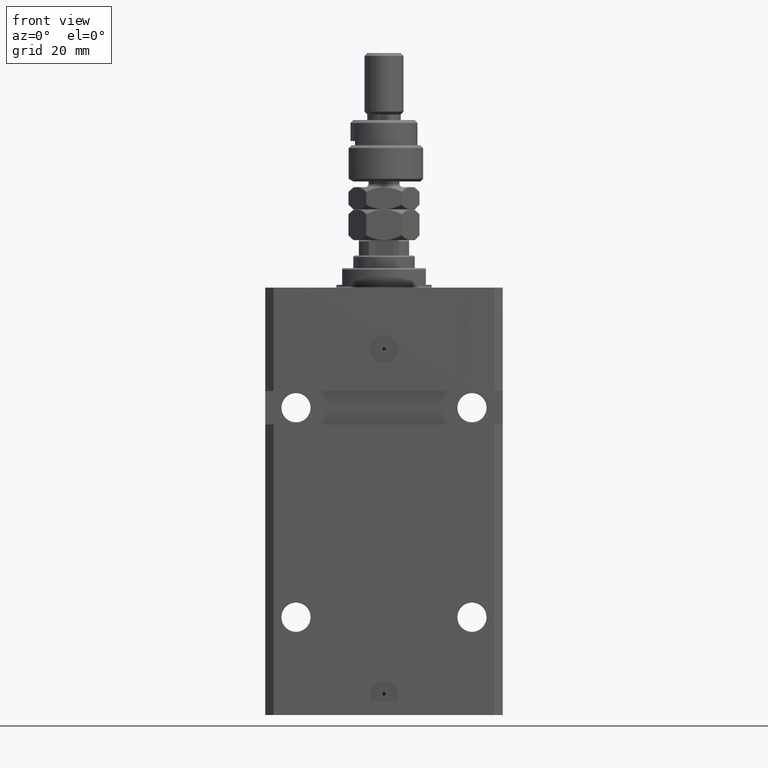
[diagram: clean part render]
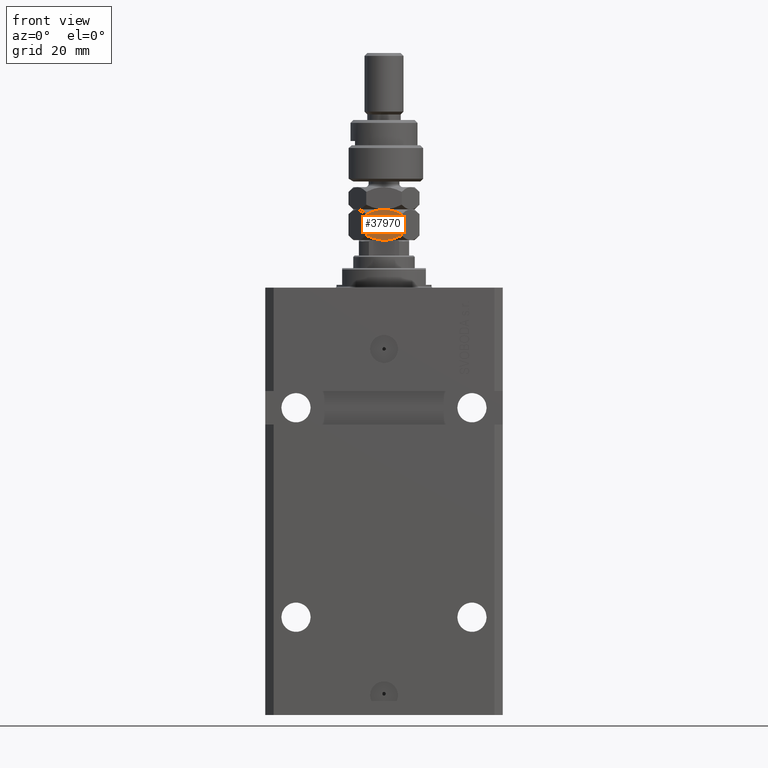
[diagram: same view with one face highlighted and labeled with its STEP entity id]
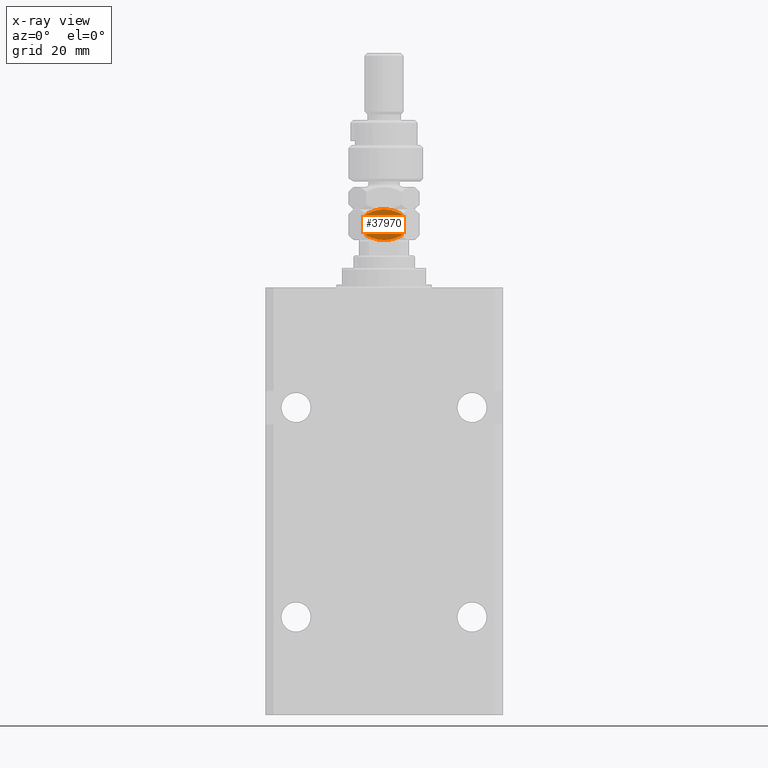
[diagram: x-ray of the same camera — body ghosted, the highlighted face saturated]
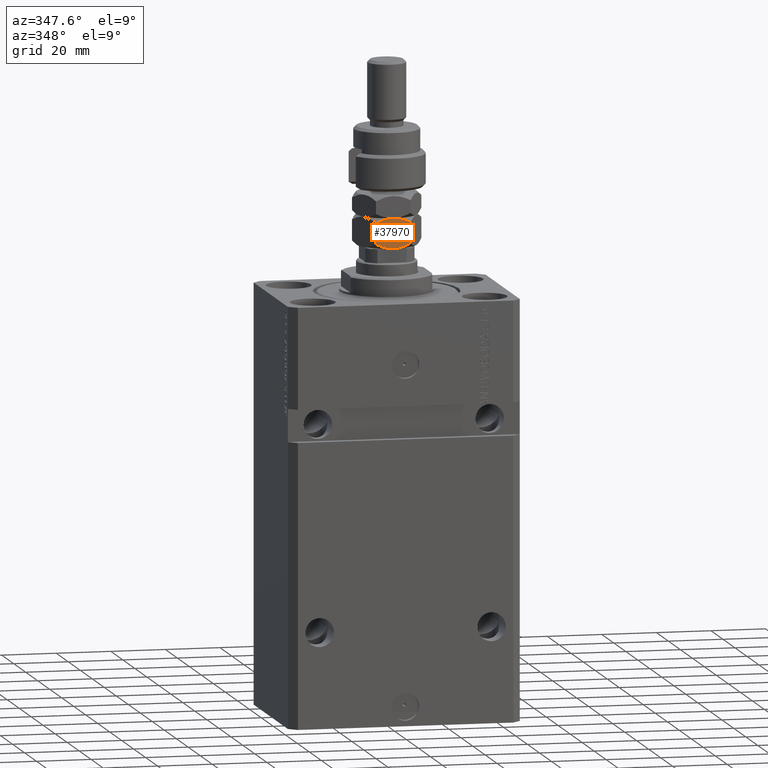
[diagram: same view with one face highlighted and labeled with its STEP entity id]
A machine part, front view. The second image highlights one B-rep face of the part: STEP entity #37970.
The next image is the same camera in x-ray: the body ghosted, the highlighted face saturated — about 0% of this face is hidden behind the body in this view.
A second angle (auxiliary view) of the same face is appended — the face is thin or edge-on in the first view.
In plain terms, the highlighted planar face has unit normal (-0, 1, 0).
Its self-contained STEP definition (entity closure, byte-faithful):
#1102 = VERTEX_POINT ( 'NONE', #20437 ) ;
#1562 = CARTESIAN_POINT ( 'NONE',  ( 4.529374112020102316, -10.08667055933643475, 10.95634070256488179 ) ) ;
#2442 = B_SPLINE_CURVE_WITH_KNOTS ( 'NONE', 3,
 ( #14763, #34098, #13759, #42058, #17888, #18388 ),
 .UNSPECIFIED., .F., .F.,
 ( 4, 2, 4 ),
 ( 0.006583488920348296025, 0.009852050593448711396, 0.01312061226654912677 ),
 .UNSPECIFIED. ) ;
#3402 = LINE ( 'NONE', #34843, #47838 ) ;
#3995 = CARTESIAN_POINT ( 'NONE',  ( 1.748214531935804672, -11.69237379155741330, 0.7776848045220248196 ) ) ;
#4299 = EDGE_CURVE ( 'NONE', #19673, #43240, #48394, .T. ) ;
#5434 = CARTESIAN_POINT ( 'NONE',  ( 1.744478007639205241, -11.69453107486588728, 10.21937661245323170 ) ) ;
#5651 = CARTESIAN_POINT ( 'NONE',  ( 5.499999999999994671, -9.526279441628823008, 11.00000000000000000 ) ) ;
#7852 = CARTESIAN_POINT ( 'NONE',  ( 11.00000000000000000, -6.350852961085885262, 9.298294077828238358 ) ) ;
#9426 = EDGE_CURVE ( 'NONE', #42990, #39379, #33290, .T. ) ;
#9623 = CARTESIAN_POINT ( 'NONE',  ( 7.420105971005177992, -8.417705742396378810, 0.2081220748670716547 ) ) ;
#11053 = FACE_OUTER_BOUND ( 'NONE', #12209, .T. ) ;
#11556 = DIRECTION ( 'NONE',  ( -0.4999999999999996669, 0.8660254037844388186, 0.000000000000000000 ) ) ;
#12059 = EDGE_CURVE ( 'NONE', #26267, #42990, #2442, .T. ) ;
#12209 = EDGE_LOOP ( 'NONE', ( #29769, #27871, #33369, #42144, #12332, #12269 ) ) ;
#12243 = CARTESIAN_POINT ( 'NONE',  ( 5.499999999999996447, -9.526279441628828337, 0.000000000000000000 ) ) ;
#12269 = ORIENTED_EDGE ( 'NONE', *, *, #4299, .F. ) ;
#12332 = ORIENTED_EDGE ( 'NONE', *, *, #47873, .T. ) ;
#12976 = CARTESIAN_POINT ( 'NONE',  ( 10.13752086928278118, -6.848805519375901874, 1.203753363881747029 ) ) ;
#13485 = CARTESIAN_POINT ( 'NONE',  ( 11.00000000000000000, -6.350852961085885262, 1.701705922171761864 ) ) ;
#13737 = CARTESIAN_POINT ( 'NONE',  ( 5.499999999999996447, -9.526279441628828337, 0.000000000000000000 ) ) ;
#13759 = CARTESIAN_POINT ( 'NONE',  ( 7.397073880711846350, -8.431003325927232339, 10.83109139163524404 ) ) ;
#13982 = CARTESIAN_POINT ( 'NONE',  ( 5.981709287746637571, -9.248164454677159085, -1.733029410082298494E-15 ) ) ;
#14763 = CARTESIAN_POINT ( 'NONE',  ( 5.499999999999994671, -9.526279441628823008, 11.00000000000000000 ) ) ;
#15259 = CARTESIAN_POINT ( 'NONE',  ( -2.056508384864602535E-15, -12.70170592217176342, 1.701705922171757868 ) ) ;
#16792 = VECTOR ( 'NONE', #25277, 1000.000000000000000 ) ;
#17072 = B_SPLINE_CURVE_WITH_KNOTS ( 'NONE', 3,
 ( #13485, #12976, #21458, #28689, #9623, #37169, #13982, #13737 ),
 .UNSPECIFIED., .F., .F.,
 ( 4, 2, 2, 4 ),
 ( 2.544311317612473652E-07, 0.003291871675740032539, 0.004937680298044168185, 0.006583488920348303831 ),
 .UNSPECIFIED. ) ;
#17888 = CARTESIAN_POINT ( 'NONE',  ( 10.13851939750335696, -6.848229018838962290, 9.795670135581396210 ) ) ;
#18387 = AXIS2_PLACEMENT_3D ( 'NONE', #38081, #11556, #38844 ) ;
#18388 = CARTESIAN_POINT ( 'NONE',  ( 11.00000000000000000, -6.350852961085885262, 9.298294077828238358 ) ) ;
#19673 = VERTEX_POINT ( 'NONE', #12243 ) ;
#20437 = CARTESIAN_POINT ( 'NONE',  ( -1.735608132212364507E-15, -12.70170592217176342, 9.298294077828241910 ) ) ;
#21458 = CARTESIAN_POINT ( 'NONE',  ( 9.255521992360788985, -7.358027808391763180, 0.7806233875467720740 ) ) ;
#21996 = B_SPLINE_CURVE_WITH_KNOTS ( 'NONE', 3,
 ( #44849, #37362, #5434, #28628, #45344, #1562, #36339, #44333 ),
 .UNSPECIFIED., .F., .F.,
 ( 4, 2, 2, 4 ),
 ( 2.544311317609507449E-07, 0.003291871675740027335, 0.004937680298044161246, 0.006583488920348296025 ),
 .UNSPECIFIED. ) ;
#22037 = EDGE_CURVE ( 'NONE', #39379, #19673, #17072, .T. ) ;
#22240 = EDGE_CURVE ( 'NONE', #1102, #26267, #21996, .T. ) ;
#22374 = PLANE ( 'NONE',  #18387 ) ;
#23305 = CARTESIAN_POINT ( 'NONE',  ( 11.00000000000000000, -6.350852961085885262, 1.701705922171761864 ) ) ;
#24087 = CARTESIAN_POINT ( 'NONE',  ( -2.056508384864602535E-15, -12.70170592217176342, 1.701705922171757868 ) ) ;
#25277 = DIRECTION ( 'NONE',  ( -0.000000000000000000, -0.000000000000000000, -1.000000000000000000 ) ) ;
#26267 = VERTEX_POINT ( 'NONE', #5651 ) ;
#27871 = ORIENTED_EDGE ( 'NONE', *, *, #9426, .F. ) ;
#28628 = CARTESIAN_POINT ( 'NONE',  ( 3.115032419653385176, -10.90324111615047364, 10.67178078790959717 ) ) ;
#28689 = CARTESIAN_POINT ( 'NONE',  ( 7.884967580346608607, -8.149317767107183030, 0.3282192120904023902 ) ) ;
#29769 = ORIENTED_EDGE ( 'NONE', *, *, #22037, .F. ) ;
#31579 = CARTESIAN_POINT ( 'NONE',  ( 5.499999999999996447, -9.526279441628828337, 0.000000000000000000 ) ) ;
#33290 = LINE ( 'NONE', #33536, #16792 ) ;
#33369 = ORIENTED_EDGE ( 'NONE', *, *, #12059, .F. ) ;
#33536 = CARTESIAN_POINT ( 'NONE',  ( 11.00000000000000000, -6.350852961085885262, 11.00000000000000000 ) ) ;
#34098 = CARTESIAN_POINT ( 'NONE',  ( 6.456670474420572070, -8.973945485696336988, 11.00000000000000711 ) ) ;
#34843 = CARTESIAN_POINT ( 'NONE',  ( -2.168404344971008868E-15, -12.70170592217176342, 11.00000000000000000 ) ) ;
#36339 = CARTESIAN_POINT ( 'NONE',  ( 5.018290712253354435, -9.804394428580495813, 11.00000000000000178 ) ) ;
#37169 = CARTESIAN_POINT ( 'NONE',  ( 6.470625887979890578, -8.965888323921214820, 0.04365929743512345085 ) ) ;
#37362 = CARTESIAN_POINT ( 'NONE',  ( 0.8624791307172111621, -12.20375336388174503, 9.796246636118258522 ) ) ;
#37970 = ADVANCED_FACE ( 'NONE', ( #11053 ), #22374, .F. ) ;
#38081 = CARTESIAN_POINT ( 'NONE',  ( -2.168404344971008868E-15, -12.70170592217176342, 11.00000000000000000 ) ) ;
#38844 = DIRECTION ( 'NONE',  ( -0.8660254037844388186, -0.4999999999999996669, 0.000000000000000000 ) ) ;
#39379 = VERTEX_POINT ( 'NONE', #23305 ) ;
#42058 = CARTESIAN_POINT ( 'NONE',  ( 9.251785468064188223, -7.360185091700238935, 10.22231519547797163 ) ) ;
#42144 = ORIENTED_EDGE ( 'NONE', *, *, #22240, .F. ) ;
#42904 = CARTESIAN_POINT ( 'NONE',  ( 0.8614806024966409348, -12.20432986441868550, 1.204329864418603124 ) ) ;
#42990 = VERTEX_POINT ( 'NONE', #7852 ) ;
#43240 = VERTEX_POINT ( 'NONE', #15259 ) ;
#43661 = CARTESIAN_POINT ( 'NONE',  ( 3.602926119288148321, -10.62155555733041545, 0.1689086083647563796 ) ) ;
#44333 = CARTESIAN_POINT ( 'NONE',  ( 5.499999999999994671, -9.526279441628823008, 11.00000000000000000 ) ) ;
#44849 = CARTESIAN_POINT ( 'NONE',  ( -1.735608132212364507E-15, -12.70170592217176342, 9.298294077828241910 ) ) ;
#45344 = CARTESIAN_POINT ( 'NONE',  ( 3.579894028994816235, -10.63485314086127431, 10.79187792513292798 ) ) ;
#47034 = CARTESIAN_POINT ( 'NONE',  ( 4.543329525579419936, -10.07861339756131258, -1.661878642512936674E-15 ) ) ;
#47838 = VECTOR ( 'NONE', #50578, 1000.000000000000000 ) ;
#47873 = EDGE_CURVE ( 'NONE', #1102, #43240, #3402, .T. ) ;
#48394 = B_SPLINE_CURVE_WITH_KNOTS ( 'NONE', 3,
 ( #31579, #47034, #43661, #3995, #42904, #24087 ),
 .UNSPECIFIED., .F., .F.,
 ( 4, 2, 4 ),
 ( 0.006583488920348303831, 0.009852050593448714866, 0.01312061226654912503 ),
 .UNSPECIFIED. ) ;
#50578 = DIRECTION ( 'NONE',  ( -0.000000000000000000, -0.000000000000000000, -1.000000000000000000 ) ) ;